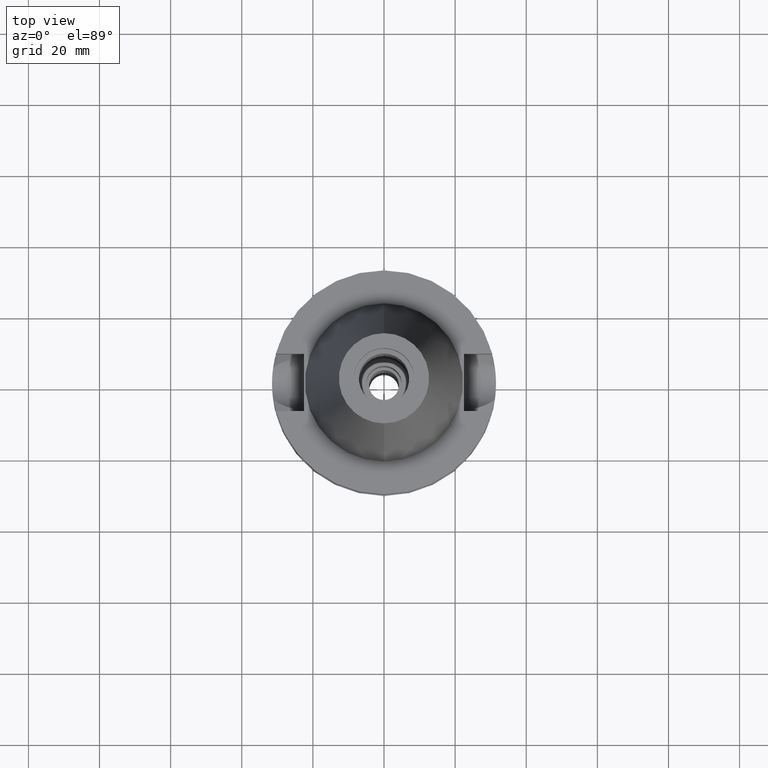
[diagram: clean part render]
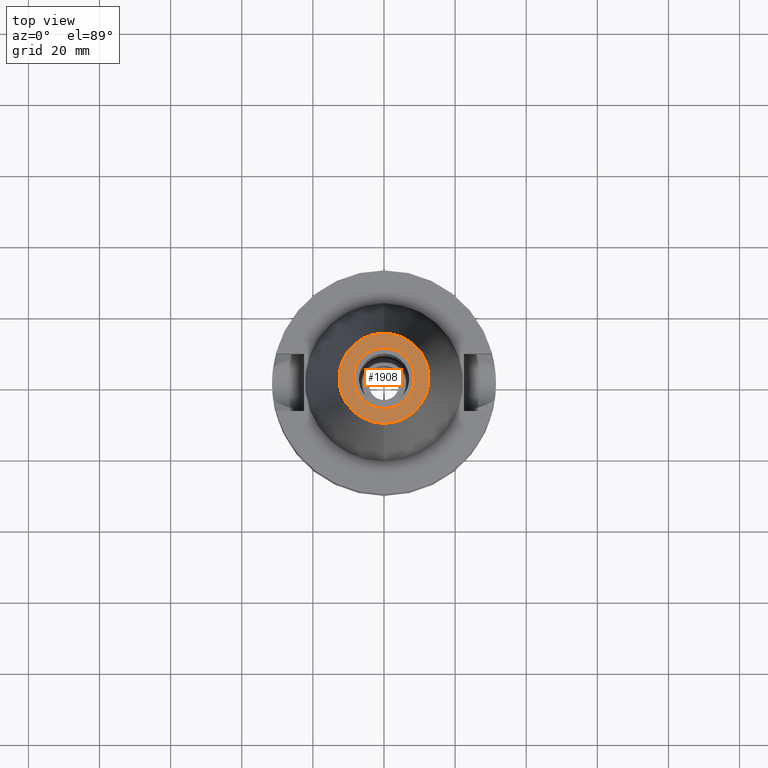
[diagram: same view with one face highlighted and labeled with its STEP entity id]
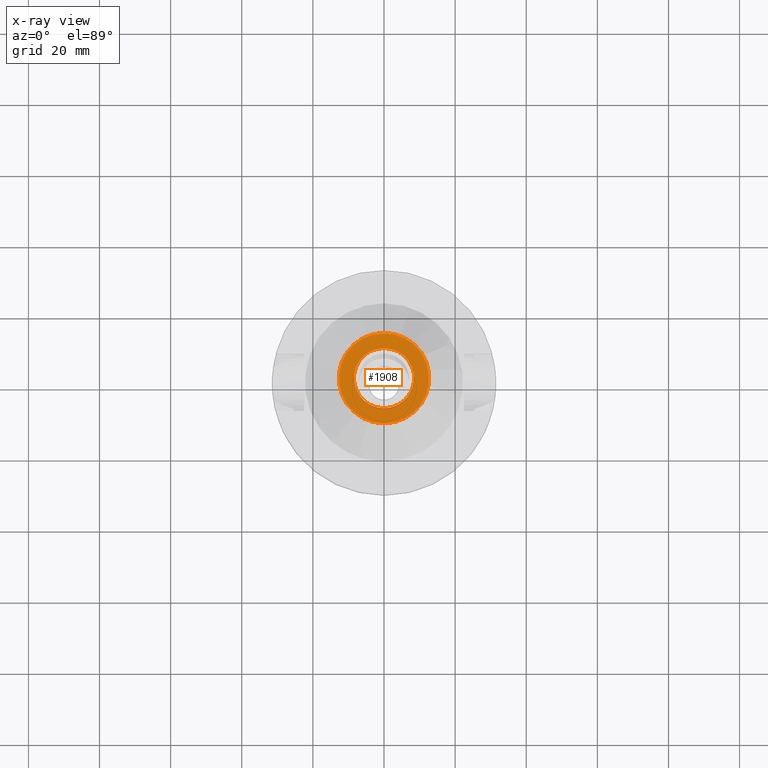
[diagram: x-ray of the same camera — body ghosted, the highlighted face saturated]
A machine part, top view. The second image highlights one B-rep face of the part: STEP entity #1908.
The next image is the same camera in x-ray: the body ghosted, the highlighted face saturated — about 0% of this face is hidden behind the body in this view.
In plain terms, the highlighted planar face has unit normal (0, 0, -1).
Its self-contained STEP definition (entity closure, byte-faithful):
#7 = FACE_OUTER_BOUND ( 'NONE', #237, .T. ) ;
#21 = DIRECTION ( 'NONE',  ( 0.0000000000000000000, -1.000000000000000000, 0.0000000000000000000 ) ) ;
#35 = PLANE ( 'NONE',  #1810 ) ;
#52 = ORIENTED_EDGE ( 'NONE', *, *, #2110, .F. ) ;
#114 = CARTESIAN_POINT ( 'NONE',  ( 0.0000000000000000000, 1.625106302469000024E-14, 65.40000000000000568 ) ) ;
#183 = EDGE_LOOP ( 'NONE', ( #1450, #2696 ) ) ;
#208 = DIRECTION ( 'NONE',  ( 0.0000000000000000000, 0.0000000000000000000, -1.000000000000000000 ) ) ;
#237 = EDGE_LOOP ( 'NONE', ( #52, #707 ) ) ;
#269 = CARTESIAN_POINT ( 'NONE',  ( 0.0000000000000000000, 2.136273876432999670E-14, 65.40000000000000568 ) ) ;
#286 = CARTESIAN_POINT ( 'NONE',  ( 0.0000000000000000000, 2.025565805790000122E-14, 65.40000000000000568 ) ) ;
#488 = CARTESIAN_POINT ( 'NONE',  ( 0.0000000000000000000, -12.68766899429999917, 65.40000000000000568 ) ) ;
#490 = DIRECTION ( 'NONE',  ( 0.0000000000000000000, -1.000000000000000000, 0.0000000000000000000 ) ) ;
#533 = EDGE_CURVE ( 'NONE', #584, #2933, #631, .T. ) ;
#534 = DIRECTION ( 'NONE',  ( 0.0000000000000000000, 0.0000000000000000000, -1.000000000000000000 ) ) ;
#584 = VERTEX_POINT ( 'NONE', #488 ) ;
#631 = CIRCLE ( 'NONE', #2052, 12.68766899429999917 ) ;
#699 = DIRECTION ( 'NONE',  ( 0.0000000000000000000, 0.0000000000000000000, 1.000000000000000000 ) ) ;
#707 = ORIENTED_EDGE ( 'NONE', *, *, #533, .F. ) ;
#803 = VERTEX_POINT ( 'NONE', #2358 ) ;
#804 = CIRCLE ( 'NONE', #2145, 12.68766899429999917 ) ;
#845 = AXIS2_PLACEMENT_3D ( 'NONE', #269, #699, #490 ) ;
#931 = CARTESIAN_POINT ( 'NONE',  ( 0.0000000000000000000, 2.136273876432999670E-14, 65.40000000000000568 ) ) ;
#1113 = CARTESIAN_POINT ( 'NONE',  ( 0.0000000000000000000, -8.500000000000000000, 65.40000000000000568 ) ) ;
#1202 = FACE_BOUND ( 'NONE', #183, .T. ) ;
#1345 = VERTEX_POINT ( 'NONE', #1113 ) ;
#1388 = DIRECTION ( 'NONE',  ( 0.0000000000000000000, 0.0000000000000000000, -1.000000000000000000 ) ) ;
#1431 = CIRCLE ( 'NONE', #845, 8.500000000000000000 ) ;
#1450 = ORIENTED_EDGE ( 'NONE', *, *, #1564, .F. ) ;
#1560 = DIRECTION ( 'NONE',  ( 0.0000000000000000000, -1.000000000000000000, 0.0000000000000000000 ) ) ;
#1564 = EDGE_CURVE ( 'NONE', #803, #1345, #1899, .T. ) ;
#1810 = AXIS2_PLACEMENT_3D ( 'NONE', #286, #1388, #21 ) ;
#1899 = CIRCLE ( 'NONE', #2283, 8.500000000000000000 ) ;
#1908 = ADVANCED_FACE ( 'NONE', ( #7, #1202 ), #35, .F. ) ;
#1931 = EDGE_CURVE ( 'NONE', #1345, #803, #1431, .T. ) ;
#2052 = AXIS2_PLACEMENT_3D ( 'NONE', #2053, #208, #1560 ) ;
#2053 = CARTESIAN_POINT ( 'NONE',  ( 0.0000000000000000000, 1.625106302469000024E-14, 65.40000000000000568 ) ) ;
#2110 = EDGE_CURVE ( 'NONE', #2933, #584, #804, .T. ) ;
#2145 = AXIS2_PLACEMENT_3D ( 'NONE', #114, #534, #2375 ) ;
#2283 = AXIS2_PLACEMENT_3D ( 'NONE', #931, #2839, #2573 ) ;
#2358 = CARTESIAN_POINT ( 'NONE',  ( 0.0000000000000000000, 8.500000000000000000, 65.40000000000000568 ) ) ;
#2375 = DIRECTION ( 'NONE',  ( 0.0000000000000000000, 1.000000000000000000, 0.0000000000000000000 ) ) ;
#2573 = DIRECTION ( 'NONE',  ( 0.0000000000000000000, 1.000000000000000000, 0.0000000000000000000 ) ) ;
#2584 = CARTESIAN_POINT ( 'NONE',  ( 0.0000000000000000000, 12.68766899429999917, 65.40000000000000568 ) ) ;
#2696 = ORIENTED_EDGE ( 'NONE', *, *, #1931, .F. ) ;
#2839 = DIRECTION ( 'NONE',  ( 0.0000000000000000000, 0.0000000000000000000, 1.000000000000000000 ) ) ;
#2933 = VERTEX_POINT ( 'NONE', #2584 ) ;